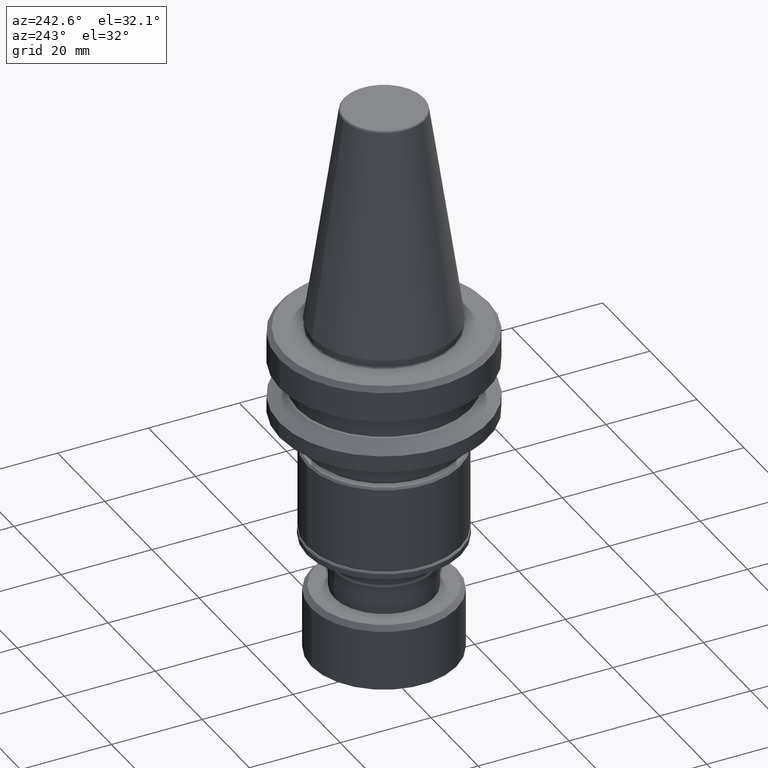
[diagram: clean part render]
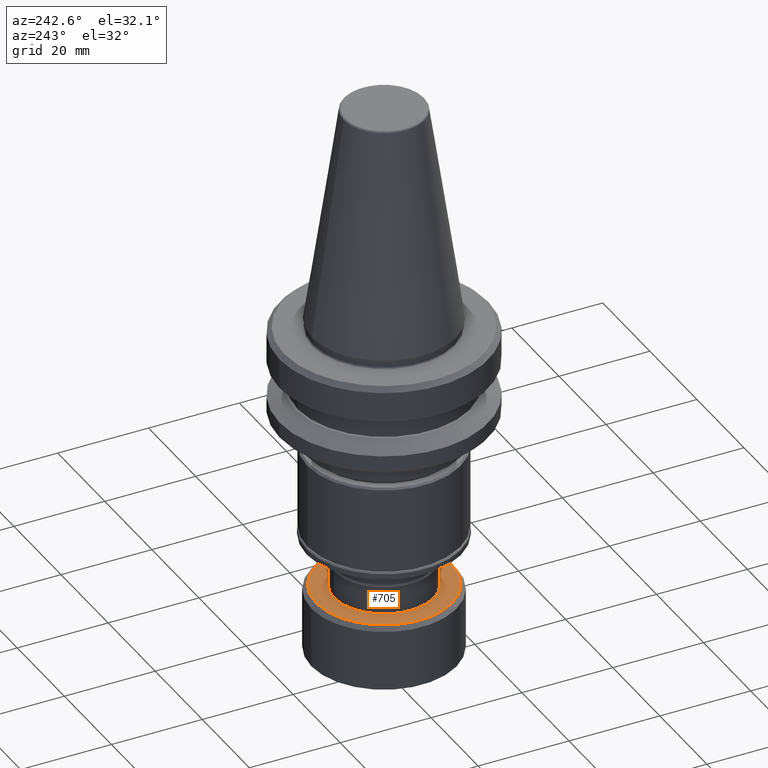
[diagram: same view with one face highlighted and labeled with its STEP entity id]
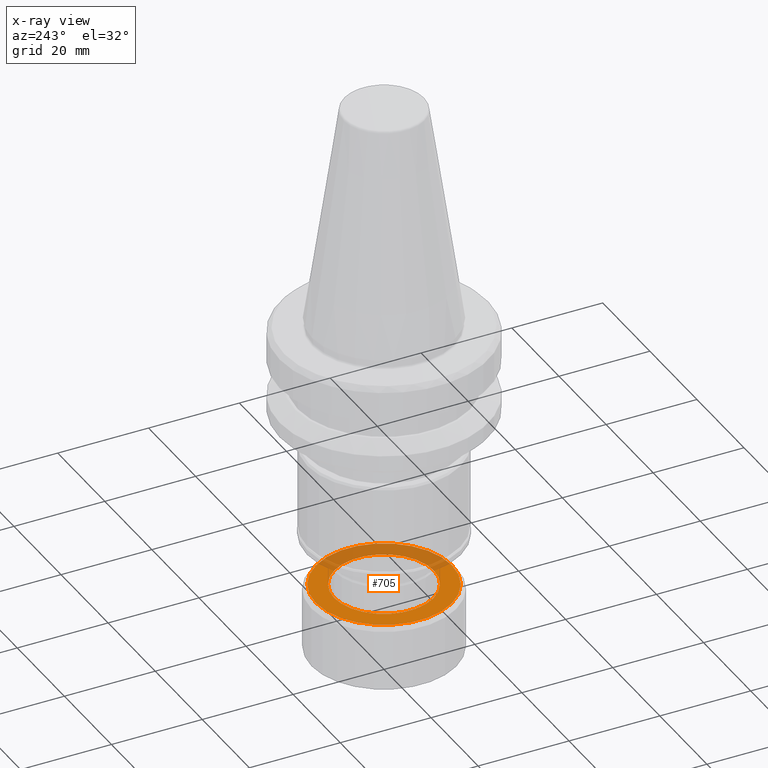
[diagram: x-ray of the same camera — body ghosted, the highlighted face saturated]
A machine part, auxiliary view. The second image highlights one B-rep face of the part: STEP entity #705.
The next image is the same camera in x-ray: the body ghosted, the highlighted face saturated — about 34% of this face is hidden behind the body in this view.
In plain terms, the highlighted planar face has unit normal (0, -0, -1).
Its self-contained STEP definition (entity closure, byte-faithful):
#35 = DIRECTION ( 'NONE',  ( -0.0000000000000000000, 1.249865351798584200E-014, 1.000000000000000000 ) ) ;
#48 = CIRCLE ( 'NONE', #442, 10.95000000001198600 ) ;
#182 = VERTEX_POINT ( 'NONE', #1742 ) ;
#197 = EDGE_LOOP ( 'NONE', ( #1021, #681 ) ) ;
#242 = DIRECTION ( 'NONE',  ( 0.0000000000000000000, -1.000000000000000000, 1.249000902702800200E-014 ) ) ;
#245 = PLANE ( 'NONE',  #1421 ) ;
#283 = VERTEX_POINT ( 'NONE', #684 ) ;
#285 = DIRECTION ( 'NONE',  ( 0.0000000000000000000, -1.000000000000000000, 1.267377881990800500E-014 ) ) ;
#290 = DIRECTION ( 'NONE',  ( 0.0000000000000000000, 1.000000000000000000, -1.249865351798584200E-014 ) ) ;
#332 = DIRECTION ( 'NONE',  ( 0.0000000000000000000, -1.000000000000000000, 1.267377881990800500E-014 ) ) ;
#355 = CARTESIAN_POINT ( 'NONE',  ( 0.0000000000000000000, -2.283802172230107800E-012, -61.49999999997071900 ) ) ;
#365 = DIRECTION ( 'NONE',  ( -0.0000000000000000000, 1.249865351798584200E-014, 1.000000000000000000 ) ) ;
#388 = CARTESIAN_POINT ( 'NONE',  ( 0.0000000000000000000, 2.026907008421561200E-027, -61.49999999997069700 ) ) ;
#407 = ORIENTED_EDGE ( 'NONE', *, *, #1176, .F. ) ;
#442 = AXIS2_PLACEMENT_3D ( 'NONE', #355, #1564, #285 ) ;
#506 = CIRCLE ( 'NONE', #1556, 15.00000000000601700 ) ;
#581 = FACE_OUTER_BOUND ( 'NONE', #197, .T. ) ;
#666 = CIRCLE ( 'NONE', #776, 15.00000000000601700 ) ;
#681 = ORIENTED_EDGE ( 'NONE', *, *, #965, .T. ) ;
#684 = CARTESIAN_POINT ( 'NONE',  ( 0.0000000000000000000, 15.00000000000373200, -61.49999999997084600 ) ) ;
#705 = ADVANCED_FACE ( 'NONE', ( #1269, #581 ), #245, .F. ) ;
#776 = AXIS2_PLACEMENT_3D ( 'NONE', #1117, #365, #1001 ) ;
#784 = EDGE_CURVE ( 'NONE', #283, #182, #506, .T. ) ;
#830 = CARTESIAN_POINT ( 'NONE',  ( 1.340988245067817400E-015, 10.95000000000970200, -61.49999999997085400 ) ) ;
#965 = EDGE_CURVE ( 'NONE', #182, #283, #666, .T. ) ;
#1001 = DIRECTION ( 'NONE',  ( 0.0000000000000000000, -1.000000000000000000, 1.249000902702800200E-014 ) ) ;
#1021 = ORIENTED_EDGE ( 'NONE', *, *, #784, .T. ) ;
#1066 = VERTEX_POINT ( 'NONE', #830 ) ;
#1117 = CARTESIAN_POINT ( 'NONE',  ( 0.0000000000000000000, -2.283802172230107000E-012, -61.49999999997066200 ) ) ;
#1176 = EDGE_CURVE ( 'NONE', #1511, #1066, #1818, .T. ) ;
#1211 = ORIENTED_EDGE ( 'NONE', *, *, #1274, .F. ) ;
#1269 = FACE_BOUND ( 'NONE', #1294, .T. ) ;
#1274 = EDGE_CURVE ( 'NONE', #1066, #1511, #48, .T. ) ;
#1294 = EDGE_LOOP ( 'NONE', ( #407, #1211 ) ) ;
#1417 = CARTESIAN_POINT ( 'NONE',  ( 0.0000000000000000000, -2.283802172230107800E-012, -61.49999999997071900 ) ) ;
#1421 = AXIS2_PLACEMENT_3D ( 'NONE', #388, #1644, #290 ) ;
#1511 = VERTEX_POINT ( 'NONE', #1542 ) ;
#1530 = CARTESIAN_POINT ( 'NONE',  ( 0.0000000000000000000, -2.283802172230107000E-012, -61.49999999997066200 ) ) ;
#1542 = CARTESIAN_POINT ( 'NONE',  ( 0.0000000000000000000, -10.95000000001427100, -61.49999999997057600 ) ) ;
#1556 = AXIS2_PLACEMENT_3D ( 'NONE', #1530, #1608, #242 ) ;
#1564 = DIRECTION ( 'NONE',  ( -0.0000000000000000000, 1.249865351798584200E-014, 1.000000000000000000 ) ) ;
#1608 = DIRECTION ( 'NONE',  ( -0.0000000000000000000, 1.249865351798584200E-014, 1.000000000000000000 ) ) ;
#1633 = AXIS2_PLACEMENT_3D ( 'NONE', #1417, #35, #332 ) ;
#1644 = DIRECTION ( 'NONE',  ( 0.0000000000000000000, -1.249865351798584200E-014, -1.000000000000000000 ) ) ;
#1742 = CARTESIAN_POINT ( 'NONE',  ( 1.898202538679138700E-015, -15.00000000000830300, -61.49999999997047700 ) ) ;
#1818 = CIRCLE ( 'NONE', #1633, 10.95000000001198600 ) ;